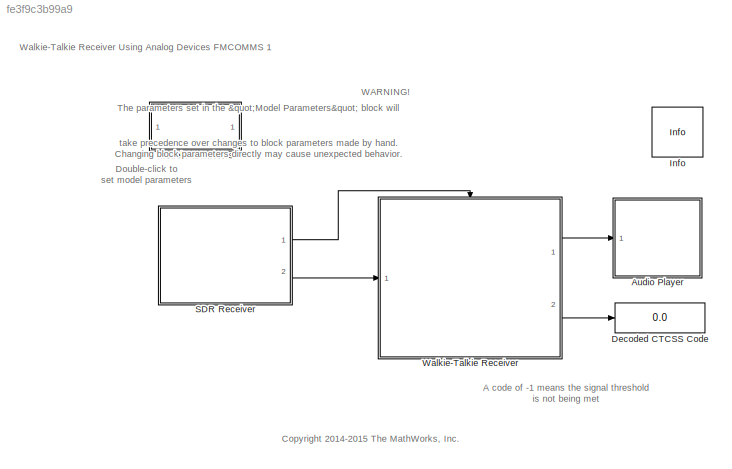
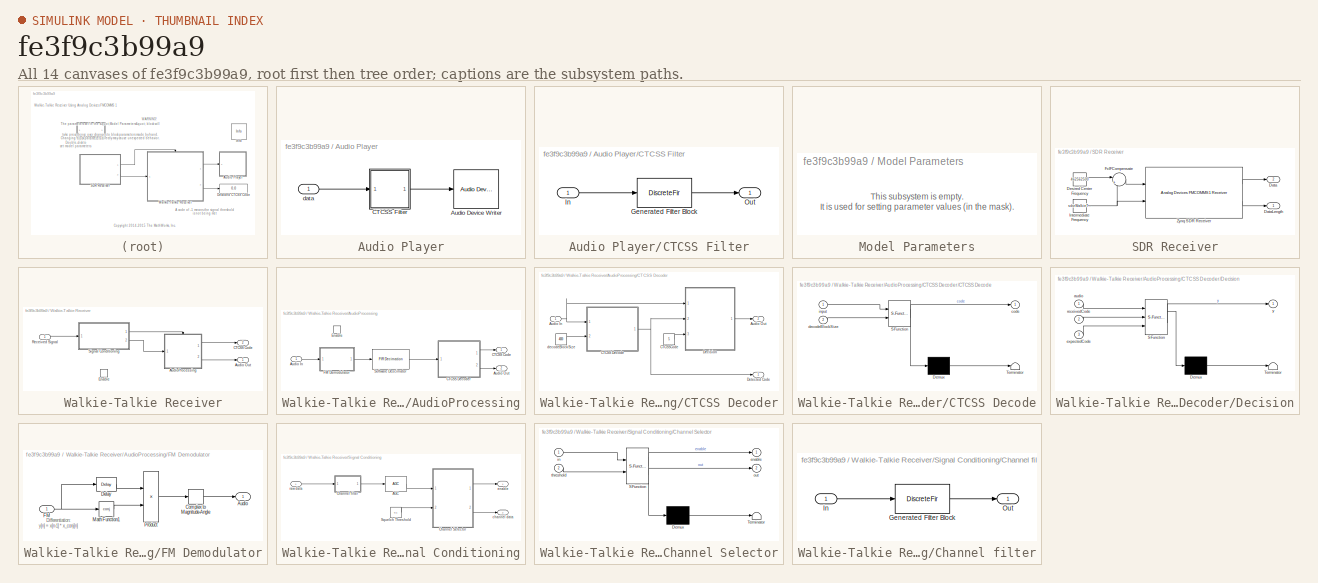
[diagram: thumbnail index - all 14 canvases of the model, root first then tree order]
MODEL slx_fe3f9c3b99a9
KIND model
CONFIG AbsTol = auto
CONFIG FixedStep = auto
CONFIG InitFcn = sdrzWalkieTalkieRxParams = sdrzWalkieTalkieRxHelper_SimParams();\nsdrzWalkieTalkieRxHelper_ModelParamsMask('applyParametersToModel');
CONFIG MaxStep = auto
CONFIG MinStep = auto
CONFIG PostLoadFcn = sdrzWalkieTalkieRxParams = sdrzWalkieTalkieRxHelper_SimParams();\nsdrzWalkieTalkieRxHelper_ModelParamsMask('applyParametersToModel');\n
CONFIG RelTol = 1e-3
CONFIG SampleTimeConstraint = Unconstrained
CONFIG Solver = ode45
CONFIG SolverMode = Auto
CONFIG SolverName = ode45
CONFIG StartTime = 0.0
CONFIG StopTime = inf
BLOCK [SubSystem] Audio Player
  Ports = [1]
  RequestExecContextInheritance = off
  Variant = off
BLOCK [Reference] Audio Player/Audio Device Writer  REF=dspsnks4/Audio Device
Writer
  Ports = [1]
  SourceBlock = dspsnks4/Audio Device\nWriter
  SourceType = Audio Device Writer
BLOCK [SubSystem] Audio Player/CTCSS Filter
  CopyFcn = fdesignblkfcn(gcbh, {'CopyFcn'});
  DialogController = fdesignblkfcn
  InitFcn = fdesignblkfcn(gcbh, {'InitFcn'});
  Ports = [1, 1]
  RequestExecContextInheritance = off
  UserDataPersistent = on
  Variant = off
BLOCK [DiscreteFir] Audio Player/CTCSS Filter/Generated Filter Block
  Coefficients = [-0.028925555785371964 -1.1648489870143571e-05 0.00073703943806698632 0.002066323838223116 0.0037924562782123907 0.0058809478036791355 0.0081971633397573667 0.010595694447078679 0.012921336253850104 0.014980443784285901 0.016607828452391647 0.017600625095919989 0.017813808896053544 0.017076060612393459 0.015299380030688972 0.012382878571311963 0.0083283365848107558 0.0031334656085627169 -0.0030917...<+927ch>
  InputPortMap = u0
  InputProcessing = Columns as channels (frame based)
  OutputPortMap = o0
  Ports = [1, 1]
  Tag = BlockMethodSubSystem
BLOCK [Inport] Audio Player/CTCSS Filter/In
  IconDisplay = Port number
BLOCK [Outport] Audio Player/CTCSS Filter/Out
  IconDisplay = Port number
BLOCK [Inport] Audio Player/data
  IconDisplay = Port number
BLOCK [Display] Decoded CTCSS Code
  Decimation = 1
  Ports = [1]
BLOCK [Reference] Info  REF=sdrzblksprivate/Info
  Ports = []
  SourceBlock = sdrzblksprivate/Info
  SourceType = Info
BLOCK [SubSystem] Model Parameters
  Ports = []
  RequestExecContextInheritance = off
  TreatAsAtomicUnit = on
  Variant = off
BLOCK [SubSystem] SDR Receiver
  Ports = [0, 2]
  RequestExecContextInheritance = off
  Variant = off
BLOCK [Outport] SDR Receiver/Data
  IconDisplay = Port number
  Port = 2
BLOCK [Outport] SDR Receiver/DataLength
  IconDisplay = Port number
BLOCK [Constant] SDR Receiver/Desired Center Frequency
  Value = 462562500
BLOCK [Sum] SDR Receiver/FcIFCompensate
  IconShape = round
  InputSameDT = off
  Inputs = |+-
  OutDataTypeStr = Inherit: Inherit via internal rule
  Ports = [2, 1]
  SaturateOnIntegerOverflow = off
BLOCK [Constant] SDR Receiver/Intermediate Frequency
  Value = sdrzWalkieTalkieRxParams.radioIntermediateFrequency
BLOCK [Reference] SDR Receiver/Zynq SDR Receiver  REF=sdrzlib/Analog Devices
FMCOMMS1 Receiver
  Ports = [2, 2]
  SourceBlock = sdrzlib/Analog Devices\nFMCOMMS1 Receiver
  SourceLibraryInfo = This block requires Communications System Toolbox Support Package for Xilinx FPGA-Based Radio. <a href="http://www.mathworks.com/hardware-support-packages">More information</a>
  SourceType = Zynq-Based Analog Devices FMCOMMS1 Receiver
BLOCK [SubSystem] Walkie-Talkie Receiver
  Ports = [1, 2, 1]
  RequestExecContextInheritance = off
  Variant = off
BLOCK [Outport] Walkie-Talkie Receiver/Audio Out
  IconDisplay = Port number
BLOCK [SubSystem] Walkie-Talkie Receiver/AudioProcessing
  Ports = [1, 2, 1]
  RequestExecContextInheritance = off
  Variant = off
BLOCK [Inport] Walkie-Talkie Receiver/AudioProcessing/Audio In
  IconDisplay = Port number
BLOCK [Outport] Walkie-Talkie Receiver/AudioProcessing/Audio Out
  IconDisplay = Port number
  InitialOutput = 0
  OutputWhenDisabled = reset
  Port = 2
BLOCK [Outport] Walkie-Talkie Receiver/AudioProcessing/CTCSS Code
  IconDisplay = Port number
  InitialOutput = -1
  OutputWhenDisabled = reset
BLOCK [SubSystem] Walkie-Talkie Receiver/AudioProcessing/CTCSS Decoder
  Ports = [1, 2]
  RequestExecContextInheritance = off
  Variant = off
BLOCK [Inport] Walkie-Talkie Receiver/AudioProcessing/CTCSS Decoder/Audio In
  IconDisplay = Port number
BLOCK [Outport] Walkie-Talkie Receiver/AudioProcessing/CTCSS Decoder/Audio Out
  IconDisplay = Port number
  Port = 2
BLOCK [SubSystem] Walkie-Talkie Receiver/AudioProcessing/CTCSS Decoder/CTCSS Decode
  ErrorFcn = Stateflow.Translate.translate
  PermitHierarchicalResolution = ExplicitOnly
  Ports = [2, 1]
  RequestExecContextInheritance = off
  SFBlockType = MATLAB Function
  TreatAsAtomicUnit = on
  Variant = off
BLOCK [Demux] Walkie-Talkie Receiver/AudioProcessing/CTCSS Decoder/CTCSS Decode/ Demux 
  Outputs = 1
  Ports = [1, 1]
BLOCK [S-Function] Walkie-Talkie Receiver/AudioProcessing/CTCSS Decoder/CTCSS Decode/ SFunction 
  EnableBusSupport = off
  FunctionName = sf_sfun
  Parameters = GoertzelCoeffs
  PortCounts = [2 2]
  Ports = [2, 2]
  SFunctionDeploymentMode = off
  Tag = Stateflow S-Function sdrzWalkieTalkieRx 3
BLOCK [Terminator] Walkie-Talkie Receiver/AudioProcessing/CTCSS Decoder/CTCSS Decode/ Terminator 
BLOCK [Outport] Walkie-Talkie Receiver/AudioProcessing/CTCSS Decoder/CTCSS Decode/code
  IconDisplay = Port number
BLOCK [Inport] Walkie-Talkie Receiver/AudioProcessing/CTCSS Decoder/CTCSS Decode/decodeBlockSize
  IconDisplay = Port number
  Port = 2
BLOCK [Inport] Walkie-Talkie Receiver/AudioProcessing/CTCSS Decoder/CTCSS Decode/input
  IconDisplay = Port number
BLOCK [Constant] Walkie-Talkie Receiver/AudioProcessing/CTCSS Decoder/CTCSSCode
  Value = 5
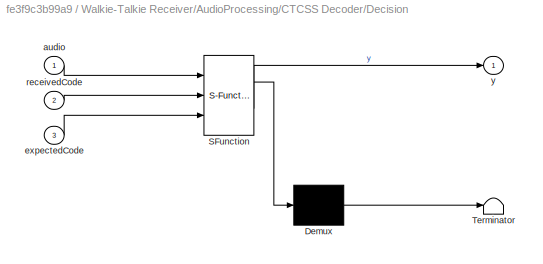
BLOCK [SubSystem] Walkie-Talkie Receiver/AudioProcessing/CTCSS Decoder/Decision
  ErrorFcn = Stateflow.Translate.translate
  PermitHierarchicalResolution = ExplicitOnly
  Ports = [3, 1]
  RequestExecContextInheritance = off
  SFBlockType = MATLAB Function
  TreatAsAtomicUnit = on
  Variant = off
BLOCK [Demux] Walkie-Talkie Receiver/AudioProcessing/CTCSS Decoder/Decision/ Demux 
  Outputs = 1
  Ports = [1, 1]
BLOCK [S-Function] Walkie-Talkie Receiver/AudioProcessing/CTCSS Decoder/Decision/ SFunction 
  EnableBusSupport = off
  FunctionName = sf_sfun
  PortCounts = [3 2]
  Ports = [3, 2]
  SFunctionDeploymentMode = off
  Tag = Stateflow S-Function sdrzWalkieTalkieRx 2
BLOCK [Terminator] Walkie-Talkie Receiver/AudioProcessing/CTCSS Decoder/Decision/ Terminator 
BLOCK [Inport] Walkie-Talkie Receiver/AudioProcessing/CTCSS Decoder/Decision/audio
  IconDisplay = Port number
BLOCK [Inport] Walkie-Talkie Receiver/AudioProcessing/CTCSS Decoder/Decision/expectedCode
  IconDisplay = Port number
  Port = 3
BLOCK [Inport] Walkie-Talkie Receiver/AudioProcessing/CTCSS Decoder/Decision/receivedCode
  IconDisplay = Port number
  Port = 2
BLOCK [Outport] Walkie-Talkie Receiver/AudioProcessing/CTCSS Decoder/Decision/y
  IconDisplay = Port number
BLOCK [Outport] Walkie-Talkie Receiver/AudioProcessing/CTCSS Decoder/Detected Code
  IconDisplay = Port number
BLOCK [Constant] Walkie-Talkie Receiver/AudioProcessing/CTCSS Decoder/decodeBlockSize
  Value = 4000
BLOCK [EnablePort] Walkie-Talkie Receiver/AudioProcessing/Enable
  Ports = []
BLOCK [SubSystem] Walkie-Talkie Receiver/AudioProcessing/FM Demodulator
  Ports = [1, 1]
  RequestExecContextInheritance = off
  Variant = off
BLOCK [Outport] Walkie-Talkie Receiver/AudioProcessing/FM Demodulator/Audio
  IconDisplay = Port number
BLOCK [ComplexToMagnitudeAngle] Walkie-Talkie Receiver/AudioProcessing/FM Demodulator/Complex to Magnitude-Angle
  Output = Angle
  Ports = [1, 1]
BLOCK [Delay] Walkie-Talkie Receiver/AudioProcessing/FM Demodulator/Delay
  DelayLength = 1
  InitialCondition = 0
  InputPortMap = u0
  InputProcessing = Columns as channels (frame based)
  Ports = [1, 1]
  UserDataPersistent = on
BLOCK [Inport] Walkie-Talkie Receiver/AudioProcessing/FM Demodulator/FM
  IconDisplay = Port number
BLOCK [Math] Walkie-Talkie Receiver/AudioProcessing/FM Demodulator/Math Function1
  Operator = conj
  Ports = [1, 1]
BLOCK [Product] Walkie-Talkie Receiver/AudioProcessing/FM Demodulator/Product
  InputSameDT = off
  OutDataTypeStr = Inherit: Inherit via internal rule
  Ports = [2, 1]
  SaturateOnIntegerOverflow = off
BLOCK [Reference] Walkie-Talkie Receiver/AudioProcessing/Software Descimator  REF=dspmlti4/FIR
Decimation
  Ports = [1, 1]
  SourceBlock = dspmlti4/FIR\nDecimation
  SourceType = FIR Decimation
  UserDataPersistent = on
BLOCK [Outport] Walkie-Talkie Receiver/CTCSS Code
  IconDisplay = Port number
  Port = 2
BLOCK [EnablePort] Walkie-Talkie Receiver/Enable
  Ports = []
BLOCK [Inport] Walkie-Talkie Receiver/Received Signal
  IconDisplay = Port number
BLOCK [SubSystem] Walkie-Talkie Receiver/Signal Conditioning
  Ports = [1, 2]
  RequestExecContextInheritance = off
  Variant = off
BLOCK [Reference] Walkie-Talkie Receiver/Signal Conditioning/AGC  REF=commrfcorlib/AGC
  Ports = [1, 1]
  SourceBlock = commrfcorlib/AGC
  SourceType = AGC
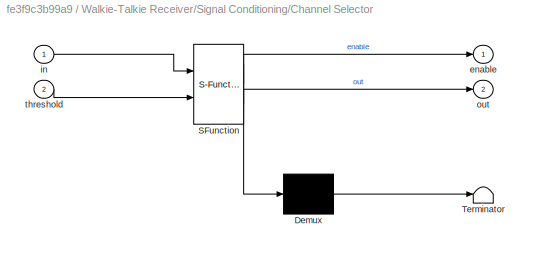
BLOCK [SubSystem] Walkie-Talkie Receiver/Signal Conditioning/Channel Selector
  ErrorFcn = Stateflow.Translate.translate
  PermitHierarchicalResolution = ExplicitOnly
  Ports = [2, 2]
  RequestExecContextInheritance = off
  SFBlockType = MATLAB Function
  TreatAsAtomicUnit = on
  Variant = off
BLOCK [Demux] Walkie-Talkie Receiver/Signal Conditioning/Channel Selector/ Demux 
  Outputs = 1
  Ports = [1, 1]
BLOCK [S-Function] Walkie-Talkie Receiver/Signal Conditioning/Channel Selector/ SFunction 
  EnableBusSupport = off
  FunctionName = sf_sfun
  PortCounts = [2 3]
  Ports = [2, 3]
  SFunctionDeploymentMode = off
  Tag = Stateflow S-Function sdrzWalkieTalkieRx 1
BLOCK [Terminator] Walkie-Talkie Receiver/Signal Conditioning/Channel Selector/ Terminator 
BLOCK [Outport] Walkie-Talkie Receiver/Signal Conditioning/Channel Selector/enable
  IconDisplay = Port number
BLOCK [Inport] Walkie-Talkie Receiver/Signal Conditioning/Channel Selector/in
  IconDisplay = Port number
BLOCK [Outport] Walkie-Talkie Receiver/Signal Conditioning/Channel Selector/out
  IconDisplay = Port number
  Port = 2
BLOCK [Inport] Walkie-Talkie Receiver/Signal Conditioning/Channel Selector/threshold
  IconDisplay = Port number
  Port = 2
BLOCK [SubSystem] Walkie-Talkie Receiver/Signal Conditioning/Channel filter
  CopyFcn = fdesignblkfcn(gcbh, {'CopyFcn'});
  DialogController = fdesignblkfcn
  InitFcn = fdesignblkfcn(gcbh, {'InitFcn'});
  Ports = [1, 1]
  RequestExecContextInheritance = off
  UserDataPersistent = on
  Variant = off
BLOCK [DiscreteFir] Walkie-Talkie Receiver/Signal Conditioning/Channel filter/Generated Filter Block
  Coefficients = [-0.032572119321686695 -0.0075188284161728418 -0.0035638951960136416 0.0031285465646086327 0.010918419520454775 0.017404135429133747 0.020174416990377239 0.0174381774880999 0.0088483279136704149 -0.0042361044317724798 -0.018595166995007035 -0.029997298125918108 -0.033822387278969614 -0.026488112009911607 -0.0064746519625138929 0.025244578821400129 0.06482910993017646 0.10630771786324174 0.14273829...<+479ch>
  FilterStructure = Direct form transposed
  InputPortMap = u0
  InputProcessing = Columns as channels (frame based)
  OutputPortMap = o0
  Ports = [1, 1]
  Tag = BlockMethodSubSystem
BLOCK [Inport] Walkie-Talkie Receiver/Signal Conditioning/Channel filter/In
  IconDisplay = Port number
BLOCK [Outport] Walkie-Talkie Receiver/Signal Conditioning/Channel filter/Out
  IconDisplay = Port number
BLOCK [Constant] Walkie-Talkie Receiver/Signal Conditioning/Squelch Threshold
  FramePeriod = -1
  OutDataTypeStr = single
  Value = 0.1
  VectorParams1D = off
BLOCK [Outport] Walkie-Talkie Receiver/Signal Conditioning/channel data
  IconDisplay = Port number
  Port = 2
BLOCK [Outport] Walkie-Talkie Receiver/Signal Conditioning/enable
  IconDisplay = Port number
BLOCK [Inport] Walkie-Talkie Receiver/Signal Conditioning/raw data
  IconDisplay = Port number
ANNOTATION (root): The parameters set in the "Model Parameters" block will take precedence over changes to block parameters made by hand. Changing block parameters directly may cause unexpected behavior.
ANNOTATION (root): WARNING!
ANNOTATION (root): A code of -1 means the signal threshold is not being met
ANNOTATION (root): <copyright redacted>
ANNOTATION (root): Double-click to set model parameters
ANNOTATION (root): Walkie-Talkie Receiver Using Analog Devices FMCOMMS 1
ANNOTATION Model Parameters: This subsystem is empty. It is used for setting parameter values (in the mask).
ANNOTATION Walkie-Talkie Receiver/AudioProcessing/FM Demodulator: Differentiation: y[n] = x[n-1] * x_conj[n]
LINE Audio Player/CTCSS Filter:1 -> Audio Player/Audio Device Writer:1
LINE Audio Player/data:1 -> Audio Player/CTCSS Filter:1
LINE SDR Receiver/Desired Center Frequency:1 -> SDR Receiver/FcIFCompensate:1
LINE SDR Receiver/FcIFCompensate:1 -> SDR Receiver/Zynq SDR Receiver:1
NET SDR Receiver/Intermediate Frequency:1 -> SDR Receiver/FcIFCompensate:2, SDR Receiver/Zynq SDR Receiver:2
LINE SDR Receiver/Zynq SDR Receiver:1 -> SDR Receiver/Data:1
LINE SDR Receiver/Zynq SDR Receiver:2 -> SDR Receiver/DataLength:1
LINE SDR Receiver:1 -> Walkie-Talkie Receiver:enable
LINE SDR Receiver:2 -> Walkie-Talkie Receiver:1
LINE Walkie-Talkie Receiver/AudioProcessing/Audio In:1 -> Walkie-Talkie Receiver/AudioProcessing/FM Demodulator:1
NET Walkie-Talkie Receiver/AudioProcessing/CTCSS Decoder/Audio In:1 -> Walkie-Talkie Receiver/AudioProcessing/CTCSS Decoder/CTCSS Decode:1, Walkie-Talkie Receiver/AudioProcessing/CTCSS Decoder/Decision:1
NET Walkie-Talkie Receiver/AudioProcessing/CTCSS Decoder/CTCSS Decode:1 -> Walkie-Talkie Receiver/AudioProcessing/CTCSS Decoder/Decision:2, Walkie-Talkie Receiver/AudioProcessing/CTCSS Decoder/Detected Code:1
LINE Walkie-Talkie Receiver/AudioProcessing/CTCSS Decoder/CTCSSCode:1 -> Walkie-Talkie Receiver/AudioProcessing/CTCSS Decoder/Decision:3
LINE Walkie-Talkie Receiver/AudioProcessing/CTCSS Decoder/Decision:1 -> Walkie-Talkie Receiver/AudioProcessing/CTCSS Decoder/Audio Out:1
LINE Walkie-Talkie Receiver/AudioProcessing/CTCSS Decoder/decodeBlockSize:1 -> Walkie-Talkie Receiver/AudioProcessing/CTCSS Decoder/CTCSS Decode:2
LINE Walkie-Talkie Receiver/AudioProcessing/CTCSS Decoder:1 -> Walkie-Talkie Receiver/AudioProcessing/CTCSS Code:1
LINE Walkie-Talkie Receiver/AudioProcessing/CTCSS Decoder:2 -> Walkie-Talkie Receiver/AudioProcessing/Audio Out:1
LINE Walkie-Talkie Receiver/AudioProcessing/FM Demodulator/Complex to Magnitude-Angle:1 -> Walkie-Talkie Receiver/AudioProcessing/FM Demodulator/Audio:1
LINE Walkie-Talkie Receiver/AudioProcessing/FM Demodulator/Delay:1 -> Walkie-Talkie Receiver/AudioProcessing/FM Demodulator/Product:1
NET Walkie-Talkie Receiver/AudioProcessing/FM Demodulator/FM:1 -> Walkie-Talkie Receiver/AudioProcessing/FM Demodulator/Delay:1, Walkie-Talkie Receiver/AudioProcessing/FM Demodulator/Math Function1:1
LINE Walkie-Talkie Receiver/AudioProcessing/FM Demodulator/Math Function1:1 -> Walkie-Talkie Receiver/AudioProcessing/FM Demodulator/Product:2
LINE Walkie-Talkie Receiver/AudioProcessing/FM Demodulator/Product:1 -> Walkie-Talkie Receiver/AudioProcessing/FM Demodulator/Complex to Magnitude-Angle:1
LINE Walkie-Talkie Receiver/AudioProcessing/FM Demodulator:1 -> Walkie-Talkie Receiver/AudioProcessing/Software Descimator:1
LINE Walkie-Talkie Receiver/AudioProcessing/Software Descimator:1 -> Walkie-Talkie Receiver/AudioProcessing/CTCSS Decoder:1
LINE Walkie-Talkie Receiver/AudioProcessing:1 -> Walkie-Talkie Receiver/CTCSS Code:1
LINE Walkie-Talkie Receiver/AudioProcessing:2 -> Walkie-Talkie Receiver/Audio Out:1
LINE Walkie-Talkie Receiver/Received Signal:1 -> Walkie-Talkie Receiver/Signal Conditioning:1
LINE Walkie-Talkie Receiver/Signal Conditioning/AGC:1 -> Walkie-Talkie Receiver/Signal Conditioning/Channel Selector:1
LINE Walkie-Talkie Receiver/Signal Conditioning/Channel Selector:1 -> Walkie-Talkie Receiver/Signal Conditioning/enable:1
LINE Walkie-Talkie Receiver/Signal Conditioning/Channel Selector:2 -> Walkie-Talkie Receiver/Signal Conditioning/channel data:1
LINE Walkie-Talkie Receiver/Signal Conditioning/Channel filter:1 -> Walkie-Talkie Receiver/Signal Conditioning/AGC:1
LINE Walkie-Talkie Receiver/Signal Conditioning/Squelch Threshold:1 -> Walkie-Talkie Receiver/Signal Conditioning/Channel Selector:2
LINE Walkie-Talkie Receiver/Signal Conditioning/raw data:1 -> Walkie-Talkie Receiver/Signal Conditioning/Channel filter:1
LINE Walkie-Talkie Receiver/Signal Conditioning:1 -> Walkie-Talkie Receiver/AudioProcessing:enable
LINE Walkie-Talkie Receiver/Signal Conditioning:2 -> Walkie-Talkie Receiver/AudioProcessing:1
LINE Walkie-Talkie Receiver:1 -> Audio Player:1
LINE Walkie-Talkie Receiver:2 -> Decoded CTCSS Code:1
note: NET lines group one-source signal fan-out (src -> all destinations, sorted); 1:1 wires keep LINE
CHART Walkie-Talkie Receiver/Signal Conditioning/Channel Selector states=1 transitions=1
  STATE_LABEL 'eML_blk_kernel()'
  STATE_LABEL 'SCRIPT:\nfunction [enable, out] = squelchFilter(in, threshold)\n%#codegen\n% Compute the average power of the input signal, if it is greater than a\n% threshold, set the enable high, otherwise, low.\nout = in;\n\nlen = length(in); \npower = sum(abs(in)) / len;\n\nif (power >= threshold)\n    enable = true;\nelse \n    enable = false;\nend'
CHART Walkie-Talkie Receiver/AudioProcessing/CTCSS Decoder/Decision states=1 transitions=1
  STATE_LABEL 'eML_blk_kernel()'
  STATE_LABEL 'SCRIPT:\nfunction y  = CTCSSCodeCompare(audio, receivedCode, expectedCode)\n%#codegen\n\n% If the decoded code equals to pre-specified code, or the pre-specified\n% code is 0 (no CTCSS), the audio signal goes through, otherwise, output\n% zero.\n\nif ((receivedCode == expectedCode) || (expectedCode == 0))\n    y = audio;\nelse\n    y = single(zeros(length(audio),1));\nend\n\n'
CHART Walkie-Talkie Receiver/AudioProcessing/CTCSS Decoder/CTCSS Decode states=1 transitions=1
  STATE_LABEL 'eML_blk_kernel()'
  STATE_LABEL 'SCRIPT:\nfunction code  = CTCSS_Decode(input, GoertzelCoeffs, decodeBlockSize)\n%#codegen\n% CTCSS decoder for use in a tone squelch system.\n%\n% Requires identification of one of a set of tones in the audio stream.\n% Input is a frame of audio samples at a sample rate of (close to) 8kHz.\n%\n% Each time the function is called when a frame of samples comes in. It\n% changes the state of the function, s(n)...<+2294ch>'
